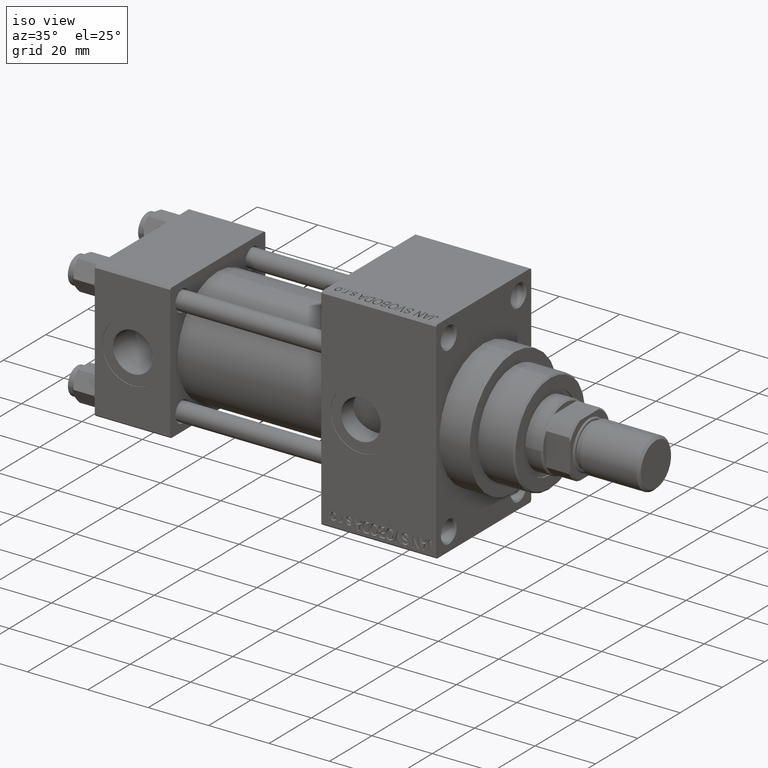
[diagram: clean part render]
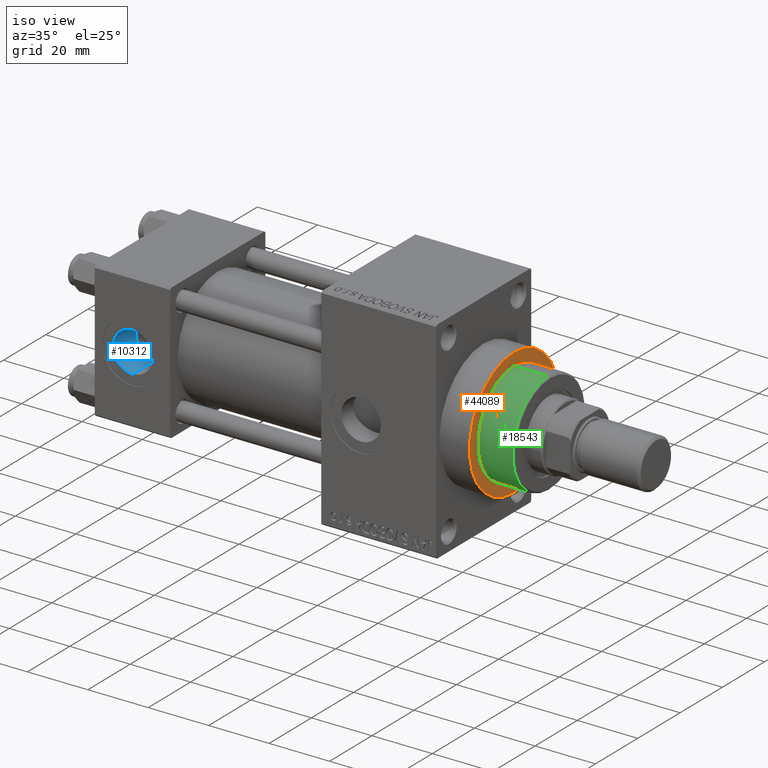
[diagram: same view with three faces highlighted in distinct colors, each labeled with its STEP entity id]
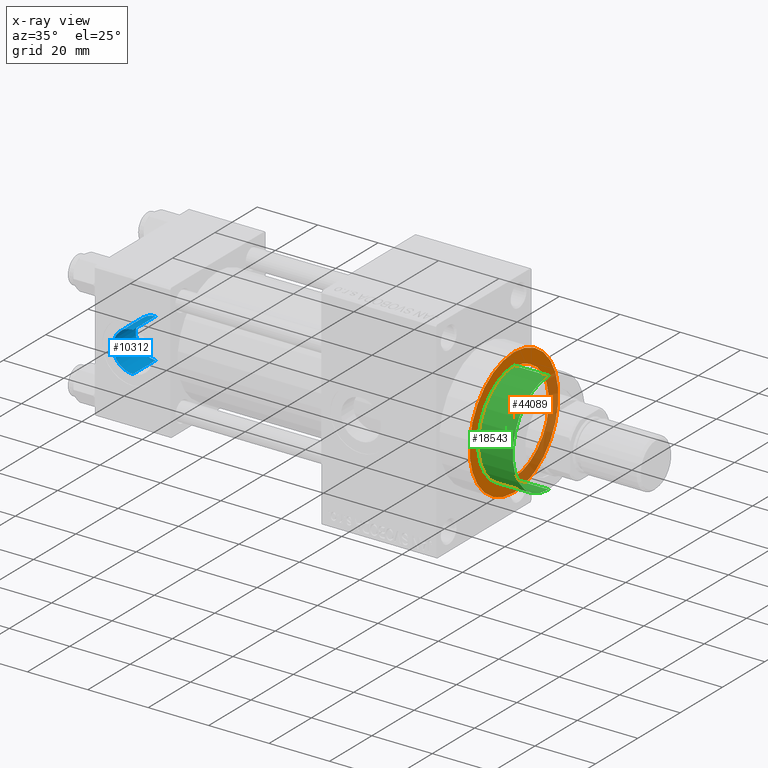
[diagram: x-ray of the same camera — body ghosted, the three highlighted faces saturated]
A machine part, iso view with three faces highlighted in distinct colors.
The next image is the same camera in x-ray (body ghosted, the three faces saturated) — at least one of them is partly hidden behind the body in this view.
Their STEP definitions:

[orange] entity #44089 — the highlighted planar face has unit normal (1, 0, 0).
#520 = CIRCLE ( 'NONE', #4355, 21.00000000000000000 ) ;
#1577 = DIRECTION ( 'NONE',  ( 1.000000000000000000, 0.000000000000000000, 0.000000000000000000 ) ) ;
#1779 = VERTEX_POINT ( 'NONE', #27125 ) ;
#2956 = ORIENTED_EDGE ( 'NONE', *, *, #18899, .F. ) ;
#3290 = CARTESIAN_POINT ( 'NONE',  ( 123.0000000000000142, 0.000000000000000000, 0.000000000000000000 ) ) ;
#4355 = AXIS2_PLACEMENT_3D ( 'NONE', #4706, #1577, #37942 ) ;
#4509 = DIRECTION ( 'NONE',  ( 0.000000000000000000, 0.000000000000000000, -1.000000000000000000 ) ) ;
#4706 = CARTESIAN_POINT ( 'NONE',  ( 123.0000000000000142, 0.000000000000000000, 0.000000000000000000 ) ) ;
#7615 = DIRECTION ( 'NONE',  ( 1.000000000000000000, 0.000000000000000000, 0.000000000000000000 ) ) ;
#7887 = ORIENTED_EDGE ( 'NONE', *, *, #17281, .F. ) ;
#9126 = ORIENTED_EDGE ( 'NONE', *, *, #31073, .T. ) ;
#9573 = DIRECTION ( 'NONE',  ( 1.000000000000000000, 0.000000000000000000, 0.000000000000000000 ) ) ;
#9810 = DIRECTION ( 'NONE',  ( 0.000000000000000000, 0.000000000000000000, -1.000000000000000000 ) ) ;
#10639 = CIRCLE ( 'NONE', #43733, 16.50000000000000000 ) ;
#10796 = DIRECTION ( 'NONE',  ( 1.000000000000000000, 0.000000000000000000, 0.000000000000000000 ) ) ;
#11477 = CARTESIAN_POINT ( 'NONE',  ( 123.0000000000000142, 0.000000000000000000, 0.000000000000000000 ) ) ;
#14655 = FACE_BOUND ( 'NONE', #34684, .T. ) ;
#17281 = EDGE_CURVE ( 'NONE', #31738, #1779, #10639, .T. ) ;
#17825 = CIRCLE ( 'NONE', #39361, 21.00000000000000000 ) ;
#18899 = EDGE_CURVE ( 'NONE', #1779, #31738, #40721, .T. ) ;
#26555 = ORIENTED_EDGE ( 'NONE', *, *, #45765, .T. ) ;
#27125 = CARTESIAN_POINT ( 'NONE',  ( 123.0000000000000142, 0.000000000000000000, -16.50000000000000000 ) ) ;
#28881 = FACE_OUTER_BOUND ( 'NONE', #46649, .T. ) ;
#29600 = PLANE ( 'NONE',  #45051 ) ;
#29757 = DIRECTION ( 'NONE',  ( 0.000000000000000000, 0.000000000000000000, -1.000000000000000000 ) ) ;
#30241 = VERTEX_POINT ( 'NONE', #35784 ) ;
#30745 = AXIS2_PLACEMENT_3D ( 'NONE', #11477, #7615, #4509 ) ;
#31009 = VERTEX_POINT ( 'NONE', #46156 ) ;
#31073 = EDGE_CURVE ( 'NONE', #30241, #31009, #17825, .T. ) ;
#31738 = VERTEX_POINT ( 'NONE', #38214 ) ;
#33228 = CARTESIAN_POINT ( 'NONE',  ( 123.0000000000000142, 0.000000000000000000, 0.000000000000000000 ) ) ;
#34684 = EDGE_LOOP ( 'NONE', ( #2956, #7887 ) ) ;
#35784 = CARTESIAN_POINT ( 'NONE',  ( 123.0000000000000142, 2.571758278209441661E-15, -21.00000000000000000 ) ) ;
#37942 = DIRECTION ( 'NONE',  ( 0.000000000000000000, 0.000000000000000000, -1.000000000000000000 ) ) ;
#38214 = CARTESIAN_POINT ( 'NONE',  ( 123.0000000000000142, 2.020667218593133100E-15, 16.50000000000000000 ) ) ;
#39361 = AXIS2_PLACEMENT_3D ( 'NONE', #3290, #40127, #29757 ) ;
#40127 = DIRECTION ( 'NONE',  ( 1.000000000000000000, 0.000000000000000000, 0.000000000000000000 ) ) ;
#40212 = DIRECTION ( 'NONE',  ( 0.000000000000000000, 0.000000000000000000, -1.000000000000000000 ) ) ;
#40721 = CIRCLE ( 'NONE', #30745, 16.50000000000000000 ) ;
#43733 = AXIS2_PLACEMENT_3D ( 'NONE', #43960, #9573, #9810 ) ;
#43960 = CARTESIAN_POINT ( 'NONE',  ( 123.0000000000000142, 0.000000000000000000, 0.000000000000000000 ) ) ;
#44089 = ADVANCED_FACE ( 'NONE', ( #14655, #28881 ), #29600, .T. ) ;
#45051 = AXIS2_PLACEMENT_3D ( 'NONE', #33228, #10796, #40212 ) ;
#45765 = EDGE_CURVE ( 'NONE', #31009, #30241, #520, .T. ) ;
#46156 = CARTESIAN_POINT ( 'NONE',  ( 123.0000000000000142, 0.000000000000000000, 21.00000000000000000 ) ) ;
#46649 = EDGE_LOOP ( 'NONE', ( #26555, #9126 ) ) ;

[blue] entity #10312 — the highlighted cylindrical surface (edge-blend (fillet) strip) has radius 6.58 mm, axis along (-0, -1, -0).
#940 = CARTESIAN_POINT ( 'NONE',  ( 12.50000000000000000, -11.53999999999997428, 6.579999999999999183 ) ) ;
#5760 = DIRECTION ( 'NONE',  ( -0.000000000000000000, -1.000000000000000000, -8.673617379884036705E-17 ) ) ;
#7162 = CIRCLE ( 'NONE', #13310, 6.579999999999998295 ) ;
#7613 = EDGE_CURVE ( 'NONE', #34108, #7786, #7162, .T. ) ;
#7786 = VERTEX_POINT ( 'NONE', #37086 ) ;
#8034 = DIRECTION ( 'NONE',  ( 0.000000000000000000, -1.000000000000000000, -8.673617379884036705E-17 ) ) ;
#9847 = VECTOR ( 'NONE', #32580, 1000.000000000000000 ) ;
#10312 = ADVANCED_FACE ( 'NONE', ( #16494 ), #46832, .F. ) ;
#12983 = CARTESIAN_POINT ( 'NONE',  ( 12.50000000000000000, -11.60000000000000142, 6.579999999999999183 ) ) ;
#13310 = AXIS2_PLACEMENT_3D ( 'NONE', #34945, #8034, #26364 ) ;
#14202 = AXIS2_PLACEMENT_3D ( 'NONE', #28285, #42981, #35747 ) ;
#15671 = EDGE_CURVE ( 'NONE', #18299, #7786, #17646, .T. ) ;
#16494 = FACE_OUTER_BOUND ( 'NONE', #31915, .T. ) ;
#17328 = LINE ( 'NONE', #12983, #41824 ) ;
#17646 = LINE ( 'NONE', #35466, #9847 ) ;
#18299 = VERTEX_POINT ( 'NONE', #30765 ) ;
#19516 = CARTESIAN_POINT ( 'NONE',  ( 12.50000000000000000, -22.30000000000000071, 6.579999999999998295 ) ) ;
#25508 = ORIENTED_EDGE ( 'NONE', *, *, #15671, .F. ) ;
#26364 = DIRECTION ( 'NONE',  ( 0.000000000000000000, 0.000000000000000000, -1.000000000000000000 ) ) ;
#27209 = AXIS2_PLACEMENT_3D ( 'NONE', #39441, #27629, #43036 ) ;
#27629 = DIRECTION ( 'NONE',  ( -0.000000000000000000, 1.000000000000000000, 8.673617379884045333E-17 ) ) ;
#28285 = CARTESIAN_POINT ( 'NONE',  ( 12.50000000000000000, -11.60000000000000142, 9.454242944073598665E-16 ) ) ;
#30765 = CARTESIAN_POINT ( 'NONE',  ( 12.50000000000000000, -11.53999999999997428, -6.579999999999997407 ) ) ;
#31915 = EDGE_LOOP ( 'NONE', ( #39597, #32289, #45755, #25508 ) ) ;
#32289 = ORIENTED_EDGE ( 'NONE', *, *, #36373, .T. ) ;
#32580 = DIRECTION ( 'NONE',  ( -0.000000000000000000, -1.000000000000000000, -8.673617379884036705E-17 ) ) ;
#34108 = VERTEX_POINT ( 'NONE', #19516 ) ;
#34555 = VERTEX_POINT ( 'NONE', #940 ) ;
#34945 = CARTESIAN_POINT ( 'NONE',  ( 12.50000000000000000, -22.30000000000000071, 1.734723475976808635E-17 ) ) ;
#35466 = CARTESIAN_POINT ( 'NONE',  ( 12.50000000000000000, -11.60000000000000142, -6.579999999999997407 ) ) ;
#35661 = CIRCLE ( 'NONE', #27209, 6.579999999999998295 ) ;
#35747 = DIRECTION ( 'NONE',  ( 0.000000000000000000, 0.000000000000000000, -1.000000000000000000 ) ) ;
#36373 = EDGE_CURVE ( 'NONE', #34555, #34108, #17328, .T. ) ;
#36623 = EDGE_CURVE ( 'NONE', #18299, #34555, #35661, .T. ) ;
#37086 = CARTESIAN_POINT ( 'NONE',  ( 12.50000000000000000, -22.30000000000000071, -6.579999999999998295 ) ) ;
#39441 = CARTESIAN_POINT ( 'NONE',  ( 12.50000000000000000, -11.53999999999997428, 9.506284648352922599E-16 ) ) ;
#39597 = ORIENTED_EDGE ( 'NONE', *, *, #36623, .T. ) ;
#41824 = VECTOR ( 'NONE', #5760, 1000.000000000000000 ) ;
#42981 = DIRECTION ( 'NONE',  ( -0.000000000000000000, -1.000000000000000000, -8.673617379884036705E-17 ) ) ;
#43036 = DIRECTION ( 'NONE',  ( 0.000000000000000000, 0.000000000000000000, -1.000000000000000000 ) ) ;
#45755 = ORIENTED_EDGE ( 'NONE', *, *, #7613, .T. ) ;
#46832 = CYLINDRICAL_SURFACE ( 'NONE', #14202, 6.579999999999998295 ) ;

[green] entity #18543 — the highlighted cylindrical surface (partial cylindrical patch) has radius 17 mm, axis along (-1, 0, 0).
#3541 = ORIENTED_EDGE ( 'NONE', *, *, #34963, .T. ) ;
#4389 = DIRECTION ( 'NONE',  ( 0.000000000000000000, 0.000000000000000000, 1.000000000000000000 ) ) ;
#6508 = EDGE_CURVE ( 'NONE', #31867, #31371, #38680, .T. ) ;
#7224 = AXIS2_PLACEMENT_3D ( 'NONE', #25666, #26382, #15295 ) ;
#8061 = EDGE_LOOP ( 'NONE', ( #22892, #3541, #33050, #45291 ) ) ;
#9197 = DIRECTION ( 'NONE',  ( -0.000000000000000000, -0.000000000000000000, -1.000000000000000000 ) ) ;
#9251 = EDGE_CURVE ( 'NONE', #17684, #22223, #46470, .T. ) ;
#9506 = CARTESIAN_POINT ( 'NONE',  ( 17.00000000000000000, 2.081899558550500280E-15, 43.25999999999999801 ) ) ;
#11110 = DIRECTION ( 'NONE',  ( 1.000000000000000000, 0.000000000000000000, 0.000000000000000000 ) ) ;
#12979 = AXIS2_PLACEMENT_3D ( 'NONE', #38850, #9197, #35227 ) ;
#13028 = EDGE_CURVE ( 'NONE', #17684, #31371, #18960, .T. ) ;
#15227 = CARTESIAN_POINT ( 'NONE',  ( -17.00000000000000000, 0.000000000000000000, 54.76000000000001222 ) ) ;
#15295 = DIRECTION ( 'NONE',  ( 1.000000000000000000, 0.000000000000000000, 0.000000000000000000 ) ) ;
#17684 = VERTEX_POINT ( 'NONE', #15227 ) ;
#17917 = AXIS2_PLACEMENT_3D ( 'NONE', #18846, #4389, #11110 ) ;
#18543 = ADVANCED_FACE ( 'NONE', ( #27532 ), #24142, .T. ) ;
#18846 = CARTESIAN_POINT ( 'NONE',  ( 0.000000000000000000, 0.000000000000000000, 43.25999999999999801 ) ) ;
#18960 = LINE ( 'NONE', #26642, #44361 ) ;
#22223 = VERTEX_POINT ( 'NONE', #41731 ) ;
#22892 = ORIENTED_EDGE ( 'NONE', *, *, #9251, .T. ) ;
#24142 = CYLINDRICAL_SURFACE ( 'NONE', #12979, 17.00000000000000000 ) ;
#25666 = CARTESIAN_POINT ( 'NONE',  ( 0.000000000000000000, 0.000000000000000000, 54.76000000000001222 ) ) ;
#26382 = DIRECTION ( 'NONE',  ( 0.000000000000000000, 0.000000000000000000, -1.000000000000000000 ) ) ;
#26642 = CARTESIAN_POINT ( 'NONE',  ( -17.00000000000000000, 0.000000000000000000, 55.26000000000000512 ) ) ;
#27532 = FACE_OUTER_BOUND ( 'NONE', #8061, .T. ) ;
#31371 = VERTEX_POINT ( 'NONE', #35029 ) ;
#31867 = VERTEX_POINT ( 'NONE', #9506 ) ;
#33050 = ORIENTED_EDGE ( 'NONE', *, *, #6508, .T. ) ;
#33165 = DIRECTION ( 'NONE',  ( -0.000000000000000000, -0.000000000000000000, -1.000000000000000000 ) ) ;
#34963 = EDGE_CURVE ( 'NONE', #22223, #31867, #46818, .T. ) ;
#35029 = CARTESIAN_POINT ( 'NONE',  ( -17.00000000000000000, 0.000000000000000000, 43.25999999999999801 ) ) ;
#35227 = DIRECTION ( 'NONE',  ( -1.000000000000000000, 0.000000000000000000, 0.000000000000000000 ) ) ;
#35737 = DIRECTION ( 'NONE',  ( -0.000000000000000000, -0.000000000000000000, -1.000000000000000000 ) ) ;
#38680 = CIRCLE ( 'NONE', #17917, 17.00000000000000000 ) ;
#38850 = CARTESIAN_POINT ( 'NONE',  ( 0.000000000000000000, 0.000000000000000000, 55.26000000000000512 ) ) ;
#41731 = CARTESIAN_POINT ( 'NONE',  ( 17.00000000000000000, 2.081899558550500280E-15, 54.76000000000001222 ) ) ;
#42732 = CARTESIAN_POINT ( 'NONE',  ( 17.00000000000000000, 2.081899558550500280E-15, 55.26000000000000512 ) ) ;
#43327 = VECTOR ( 'NONE', #35737, 1000.000000000000000 ) ;
#44361 = VECTOR ( 'NONE', #33165, 1000.000000000000000 ) ;
#45291 = ORIENTED_EDGE ( 'NONE', *, *, #13028, .F. ) ;
#46470 = CIRCLE ( 'NONE', #7224, 17.00000000000000000 ) ;
#46818 = LINE ( 'NONE', #42732, #43327 ) ;